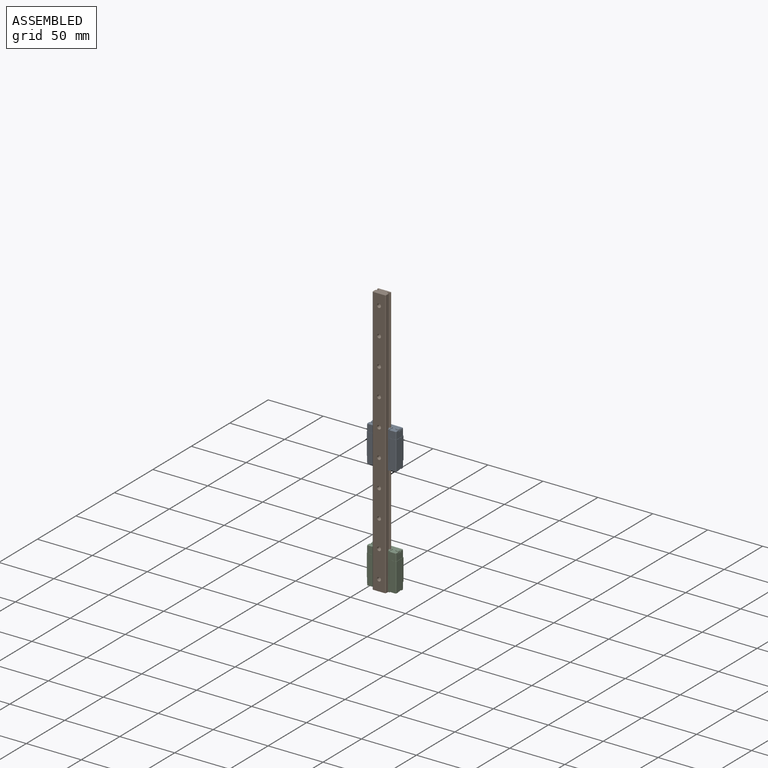
[diagram: assembled view]
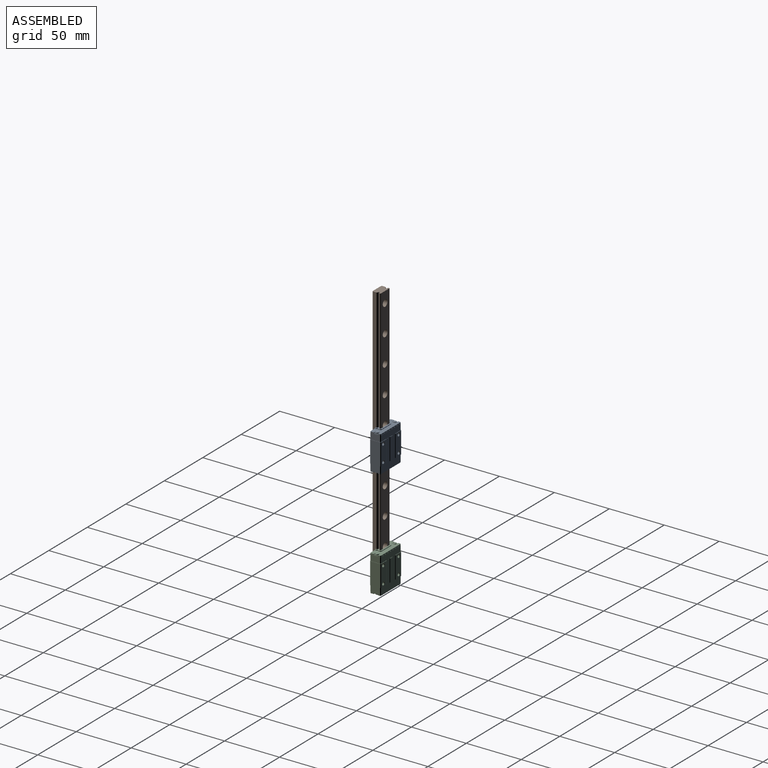
[diagram: assembled view, second angle]
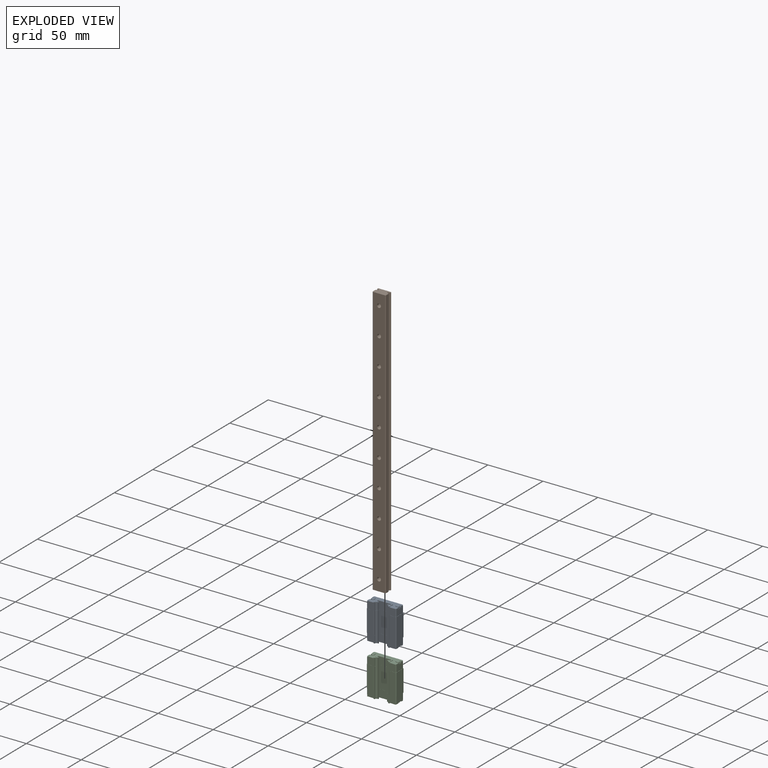
[diagram: exploded view]
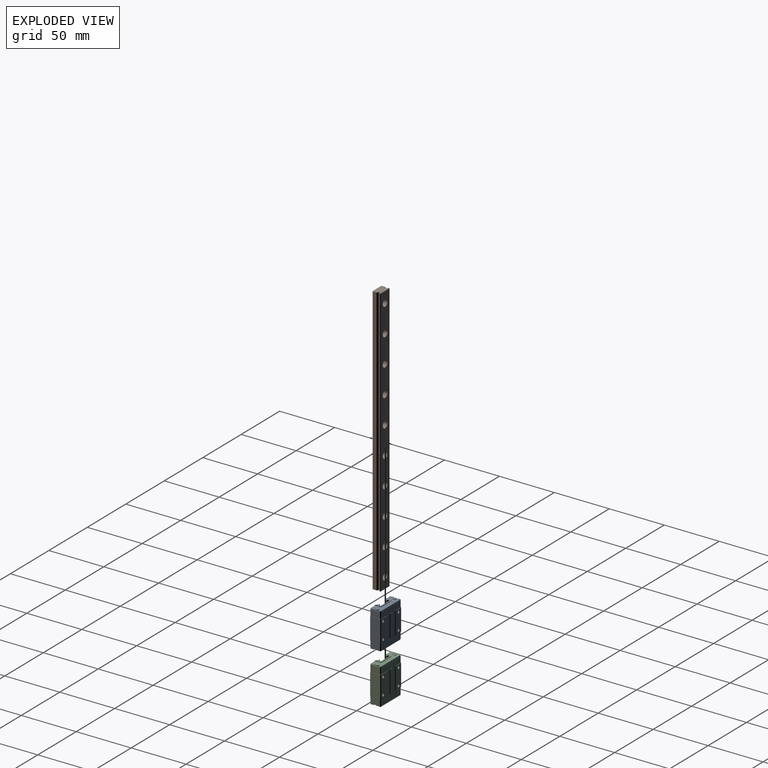
[diagram: exploded view, second angle]
ASSEMBLY  parts=3 mates=2
PART A: 236 faces, bbox 27x10x33.9 mm
  f0: cone r=1.23mm half-angle=60deg, axis (0,1,0), area 5.5mm2, adj f235
  f1: plane 6.95x0.74mm, normal (1,0,0), area 5.1mm2, adj f2,f3,f87,f224
  f2: plane 6.95x0.37mm, normal (0.5,0.87,0), area 3mm2, adj f1,f87,f160,f224
  f3: plane 6.95x0.3mm, normal (0.71,-0.71,0), area 2.9mm2, adj f1,f87,f145,f224
  f4: plane 19.9x0.74mm, normal (1,0,0), area 14.6mm2, adj f141,f142,f200,f223
  f5: plane 6.95x0.74mm, normal (1,0,0), area 5.1mm2, adj f95,f163,f164,f201
  f6: plane 6.95x0.84mm, normal (1,0,0), area 5.8mm2, adj f87,f144,f155,f224
  f7: plane 6.95x0.84mm, normal (-1,0,0), area 5.8mm2, adj f87,f120,f154,f224
  f8: plane 19.9x0.84mm, normal (1,0,0), area 16.6mm2, adj f135,f144,f200,f223
  f9: plane 6.95x0.84mm, normal (1,0,0), area 5.8mm2, adj f95,f144,f168,f201
  f10: plane 6.95x0.84mm, normal (-1,0,0), area 5.8mm2, adj f95,f120,f169,f201
  f11: plane 3x3mm, normal (0,0,-1), area 7.1mm2, adj f12
  f12: cylinder r=1.5mm len=3mm, axis (0,0,1), area 5.7mm2, adj f11,f19
  f13: cylinder r=1.5mm len=3mm, axis (0,0,1), area 5.7mm2, adj f14,f23
  f14: plane 3x3mm, normal (0,0,1), area 7.1mm2, adj f13
  f15: plane 3x3mm, normal (0,0,-1), area 7.1mm2, adj f16
  f16: cylinder r=1.5mm len=3mm, axis (0,0,1), area 5.7mm2, adj f15,f21
  f17: cylinder r=1.5mm len=3mm, axis (0,0,1), area 5.7mm2, adj f18,f25
  f18: plane 3x3mm, normal (0,0,1), area 7.1mm2, adj f17
  f19: plane 3.6x3.55mm, normal (0,0,-1), area 4.3mm2, adj f12,f20,f46,f47,f48
  f20: plane 3.6x0.6mm, normal (1,0,0), area 2.2mm2, adj f19,f41,f46,f48
  f21: plane 3.6x3.55mm, normal (0,0,-1), area 4.3mm2, adj f16,f22,f53,f54,f55
  f22: plane 3.6x0.6mm, normal (-1,0,0), area 2.2mm2, adj f21,f41,f53,f55
  f23: plane 3.6x3.55mm, normal (0,0,1), area 4.3mm2, adj f13,f24,f76,f77,f78
  f24: plane 3.6x0.6mm, normal (1,0,0), area 2.2mm2, adj f23,f71,f76,f78
  f25: plane 3.6x3.55mm, normal (0,0,1), area 4.3mm2, adj f17,f26,f83,f84,f85
  f26: plane 3.6x0.6mm, normal (-1,0,0), area 2.2mm2, adj f25,f71,f83,f85
  f27: plane 26.5x9.5mm, normal (0,0,-1), area 148.2mm2, adj f28,f29,f30,f31,f32,f33,f34,f35
  f28: plane 0.62x0.5mm, normal (-1,0,0), area 0.3mm2, adj f27,f29,f40,f87
  f29: cylinder r=1.6mm len=1.6mm, axis (0,0,1), area 1.3mm2, adj f27,f28,f30,f87
  f30: plane 11.26x0.5mm, normal (0,1,0), area 5.6mm2, adj f27,f29,f31,f87
  f31: cylinder r=1.6mm len=1.6mm, axis (0,0,1), area 1.3mm2, adj f27,f30,f32,f87
  f32: plane 0.62x0.5mm, normal (1,0,0), area 0.3mm2, adj f27,f31,f33,f87
  f33: cylinder r=1.3mm len=1.21mm, axis (0,0,1), area 0.8mm2, adj f27,f32,f34,f87
  f34: cylinder r=0.1mm len=0.5mm, axis (0,0,1), area 0.1mm2, adj f27,f33,f35,f87
  f35: cylinder r=1.3mm len=1.21mm, axis (0,0,1), area 0.8mm2, adj f27,f34,f36,f87
  f36: plane 0.79x0.5mm, normal (1,0,0), area 0.4mm2, adj f27,f35,f87,f120
  f37: plane 0.79x0.5mm, normal (-1,0,0), area 0.4mm2, adj f27,f38,f87,f144
  f38: cylinder r=1.3mm len=1.21mm, axis (0,0,1), area 0.8mm2, adj f27,f37,f39,f87
  f39: cylinder r=0.1mm len=0.5mm, axis (0,0,1), area 0.1mm2, adj f27,f38,f40,f87
  f40: cylinder r=1.3mm len=1.21mm, axis (0,0,1), area 0.8mm2, adj f27,f28,f39,f87
  f41: plane 26.6x9.6mm, normal (0,0,-1), area 5.1mm2, adj f20,f22,f42,f43,f44,f45,f46,f48
  f42: plane 1x0.5mm, normal (-0.71,0.71,0), area 0.7mm2, adj f27,f41,f43,f56
  f43: plane 25.5x1mm, normal (0,1,0), area 25.5mm2, adj f27,f41,f42,f44
  f44: plane 1x0.5mm, normal (0.71,0.71,0), area 0.7mm2, adj f27,f41,f43,f45
  f45: plane 1.9x1mm, normal (1,0,0), area 1.9mm2, adj f27,f41,f44,f46
  f46: plane 1.95x1mm, normal (0,-1,0), area 0.9mm2, adj f19,f20,f27,f41,f45,f47
  f47: cylinder r=1.8mm len=3.6mm, axis (0,0,1), area 2.3mm2, adj f19,f27,f46,f48
  f48: plane 1.95x1mm, normal (0,1,0), area 0.9mm2, adj f19,f20,f27,f41,f47,f49
  f49: plane 3x1mm, normal (1,0,0), area 3mm2, adj f27,f41,f48,f50
  f50: plane 1x0.5mm, normal (0.71,-0.71,0), area 0.7mm2, adj f27,f41,f49,f120
  f51: plane 1x0.5mm, normal (-0.71,-0.71,0), area 0.7mm2, adj f27,f41,f52,f144
  f52: plane 3x1mm, normal (-1,0,0), area 3mm2, adj f27,f41,f51,f53
  f53: plane 1.95x1mm, normal (0,1,0), area 0.9mm2, adj f21,f22,f27,f41,f52,f54
  f54: cylinder r=1.8mm len=3.6mm, axis (0,0,1), area 2.3mm2, adj f21,f27,f53,f55
  f55: plane 1.95x1mm, normal (0,-1,0), area 0.9mm2, adj f21,f22,f27,f41,f54,f56
  f56: plane 1.9x1mm, normal (-1,0,0), area 1.9mm2, adj f27,f41,f42,f55
  f57: plane 26.5x9.5mm, normal (0,0,1), area 148.2mm2, adj f58,f59,f60,f61,f62,f63,f64,f65
  f58: plane 0.62x0.5mm, normal (-1,0,0), area 0.3mm2, adj f57,f59,f70,f95
  f59: cylinder r=1.6mm len=1.6mm, axis (0,0,-1), area 1.3mm2, adj f57,f58,f60,f95
  f60: plane 11.26x0.5mm, normal (0,1,0), area 5.6mm2, adj f57,f59,f61,f95
  f61: cylinder r=1.6mm len=1.6mm, axis (0,0,-1), area 1.3mm2, adj f57,f60,f62,f95
  f62: plane 0.62x0.5mm, normal (1,0,0), area 0.3mm2, adj f57,f61,f63,f95
  f63: cylinder r=1.3mm len=1.21mm, axis (0,0,-1), area 0.8mm2, adj f57,f62,f64,f95
  f64: cylinder r=0.1mm len=0.5mm, axis (0,0,-1), area 0.1mm2, adj f57,f63,f65,f95
  f65: cylinder r=1.3mm len=1.21mm, axis (0,0,-1), area 0.8mm2, adj f57,f64,f66,f95
  f66: plane 0.79x0.5mm, normal (1,0,0), area 0.4mm2, adj f57,f65,f95,f120
  f67: plane 0.79x0.5mm, normal (-1,0,0), area 0.4mm2, adj f57,f68,f95,f144
  f68: cylinder r=1.3mm len=1.21mm, axis (0,0,-1), area 0.8mm2, adj f57,f67,f69,f95
  f69: cylinder r=0.1mm len=0.5mm, axis (0,0,-1), area 0.1mm2, adj f57,f68,f70,f95
  f70: cylinder r=1.3mm len=1.21mm, axis (0,0,-1), area 0.8mm2, adj f57,f58,f69,f95
  f71: plane 26.6x9.6mm, normal (0,0,1), area 5.1mm2, adj f24,f26,f72,f73,f74,f75,f76,f78
  f72: plane 1x0.5mm, normal (-0.71,0.71,0), area 0.7mm2, adj f57,f71,f73,f86
  f73: plane 25.5x1mm, normal (0,1,0), area 25.5mm2, adj f57,f71,f72,f74
  f74: plane 1x0.5mm, normal (0.71,0.71,0), area 0.7mm2, adj f57,f71,f73,f75
  f75: plane 1.9x1mm, normal (1,0,0), area 1.9mm2, adj f57,f71,f74,f76
  f76: plane 1.95x1mm, normal (0,-1,0), area 0.9mm2, adj f23,f24,f57,f71,f75,f77
  f77: cylinder r=1.8mm len=3.6mm, axis (0,0,-1), area 2.3mm2, adj f23,f57,f76,f78
  f78: plane 1.95x1mm, normal (0,1,0), area 0.9mm2, adj f23,f24,f57,f71,f77,f79
  f79: plane 3x1mm, normal (1,0,0), area 3mm2, adj f57,f71,f78,f80
  f80: plane 1x0.5mm, normal (0.71,-0.71,0), area 0.7mm2, adj f57,f71,f79,f120
  f81: plane 1x0.5mm, normal (-0.71,-0.71,0), area 0.7mm2, adj f57,f71,f82,f144
  f82: plane 3x1mm, normal (-1,0,0), area 3mm2, adj f57,f71,f81,f83
  f83: plane 1.95x1mm, normal (0,1,0), area 0.9mm2, adj f25,f26,f57,f71,f82,f84
  f84: cylinder r=1.8mm len=3.6mm, axis (0,0,-1), area 2.3mm2, adj f25,f57,f83,f85
  f85: plane 1.95x1mm, normal (0,-1,0), area 0.9mm2, adj f25,f26,f57,f71,f84,f86
  f86: plane 1.9x1mm, normal (-1,0,0), area 1.9mm2, adj f57,f71,f72,f85
  f87: plane 14.46x5.63mm, normal (0,0,-1), area 31.8mm2, adj f1,f2,f3,f6,f7,f28,f29,f30
  f88: plane 25.6x5.5mm, normal (0,1,0), area 140.8mm2, adj f41,f89,f94,f104
  f89: plane 5.5x0.5mm, normal (0.71,0.71,0), area 3.9mm2, adj f41,f88,f90,f104
  f90: plane 8.6x5.5mm, normal (1,0,0), area 47.3mm2, adj f41,f89,f91,f104
  f91: plane 5.5x0.5mm, normal (0.71,-0.71,0), area 3.9mm2, adj f41,f90,f104,f120
  f92: plane 5.5x0.5mm, normal (-0.71,-0.71,0), area 3.9mm2, adj f41,f93,f104,f144
  f93: plane 8.6x5.5mm, normal (-1,0,0), area 47.3mm2, adj f41,f92,f94,f104
  f94: plane 5.5x0.5mm, normal (-0.71,0.71,0), area 3.9mm2, adj f41,f88,f93,f104
  f95: plane 14.46x5.63mm, normal (0,0,1), area 31.8mm2, adj f5,f9,f10,f58,f59,f60,f61,f62
  f96: plane 25.6x5.5mm, normal (0,1,0), area 140.8mm2, adj f71,f97,f102,f103
  f97: plane 5.5x0.5mm, normal (0.71,0.71,0), area 3.9mm2, adj f71,f96,f98,f103
  f98: plane 8.6x5.5mm, normal (1,0,0), area 47.3mm2, adj f71,f97,f99,f103
  f99: plane 5.5x0.5mm, normal (0.71,-0.71,0), area 3.9mm2, adj f71,f98,f103,f120
  f100: plane 5.5x0.5mm, normal (-0.71,-0.71,0), area 3.9mm2, adj f71,f101,f103,f144
  f101: plane 8.6x5.5mm, normal (-1,0,0), area 47.3mm2, adj f71,f100,f102,f103
  f102: plane 5.5x0.5mm, normal (-0.71,0.71,0), area 3.9mm2, adj f71,f96,f101,f103
  f103: plane 27x10mm, normal (0,0,1), area 11.1mm2, adj f96,f97,f98,f99,f100,f101,f102,f105
  f104: plane 27x10mm, normal (0,0,-1), area 11.1mm2, adj f88,f89,f90,f91,f92,f93,f94,f105
  f105: plane 19.9x0.5mm, normal (-0.71,0.71,0), area 14.1mm2, adj f103,f104,f106,f124
  f106: plane 19.9x7.2mm, normal (0,1,0), area 129.1mm2, adj f103,f104,f105,f107,f225,f231
  f107: plane 19.9x0.4mm, normal (0.53,0.85,0), area 9.4mm2, adj f103,f104,f106,f108
  f108: plane 19.9x3.8mm, normal (0,1,0), area 75.6mm2, adj f103,f104,f107,f109
  f109: plane 19.9x0.4mm, normal (-0.53,0.85,0), area 9.4mm2, adj f103,f104,f108,f110
  f110: plane 19.9x2.4mm, normal (0,1,0), area 47.8mm2, adj f103,f104,f109,f111
  f111: plane 19.9x0.4mm, normal (0.53,0.85,0), area 9.4mm2, adj f103,f104,f110,f112
  f112: plane 19.9x3.8mm, normal (0,1,0), area 75.6mm2, adj f103,f104,f111,f113
  f113: plane 19.9x0.4mm, normal (-0.53,0.85,0), area 9.4mm2, adj f103,f104,f112,f114
  f114: plane 19.9x7.2mm, normal (0,1,0), area 129.1mm2, adj f103,f104,f113,f115,f228,f234
  f115: plane 19.9x0.5mm, normal (0.71,0.71,0), area 14.1mm2, adj f103,f104,f114,f116
  f116: plane 19.9x9mm, normal (1,0,0), area 179.1mm2, adj f103,f104,f115,f117
  f117: plane 19.9x0.5mm, normal (0.71,-0.71,0), area 14.1mm2, adj f103,f104,f116,f118
  f118: plane 19.9x5.5mm, normal (0,-1,0), area 109.5mm2, adj f103,f104,f117,f119
  f119: plane 19.9x0.22mm, normal (-0.41,-0.91,0), area 4.9mm2, adj f103,f104,f118,f120
  f120: plane 33.9x6.8mm, normal (0,-1,0), area 114.9mm2, adj f7,f10,f27,f36,f41,f50,f57,f66
  f121: plane 19.9x0.22mm, normal (0.41,-0.91,0), area 4.9mm2, adj f103,f104,f122,f144
  f122: plane 19.9x5.5mm, normal (0,-1,0), area 109.5mm2, adj f103,f104,f121,f123
  f123: plane 19.9x0.5mm, normal (-0.71,-0.71,0), area 14.1mm2, adj f103,f104,f122,f124
  f124: plane 19.9x9mm, normal (-1,0,0), area 179.1mm2, adj f103,f104,f105,f123
  f125: plane 19.9x11.4mm, normal (0,-1,0), area 226.9mm2, adj f126,f142,f200,f223
  f126: plane 19.9x0.3mm, normal (-0.71,-0.71,0), area 8.4mm2, adj f125,f127,f200,f223
  f127: plane 19.9x0.74mm, normal (-1,0,0), area 14.6mm2, adj f126,f128,f200,f223
  f128: plane 19.9x0.37mm, normal (-0.5,0.87,0), area 8.5mm2, adj f127,f129,f200,f223
  f129: cylinder r=1.32mm len=19.9mm, axis (0,0,1), area 15.3mm2, adj f128,f130,f200,f223
  f130: plane 19.9x1.11mm, normal (0,1,0), area 22.1mm2, adj f129,f131,f200,f223
  f131: plane 19.9x1mm, normal (-1,0,0), area 19.9mm2, adj f130,f132,f200,f223
  f132: plane 19.9x1.11mm, normal (0,-1,0), area 22.1mm2, adj f131,f133,f200,f223
  f133: cylinder r=1.32mm len=19.9mm, axis (0,0,1), area 15.3mm2, adj f132,f134,f200,f223
  f134: plane 19.9x0.37mm, normal (-0.5,-0.87,0), area 8.5mm2, adj f133,f143,f200,f223
  f135: plane 19.9x0.37mm, normal (0.5,-0.87,0), area 8.5mm2, adj f8,f136,f200,f223
  f136: cylinder r=1.32mm len=19.9mm, axis (0,0,1), area 15.3mm2, adj f135,f137,f200,f223
  f137: plane 19.9x1.11mm, normal (0,-1,0), area 22.1mm2, adj f136,f138,f200,f223
  f138: plane 19.9x1mm, normal (1,0,0), area 19.9mm2, adj f137,f139,f200,f223
  f139: plane 19.9x1.11mm, normal (0,1,0), area 22.1mm2, adj f138,f140,f200,f223
  f140: cylinder r=1.32mm len=19.9mm, axis (0,0,1), area 15.3mm2, adj f139,f141,f200,f223
  f141: plane 19.9x0.37mm, normal (0.5,0.87,0), area 8.5mm2, adj f4,f140,f200,f223
  f142: plane 19.9x0.3mm, normal (0.71,-0.71,0), area 8.4mm2, adj f4,f125,f200,f223
  f143: plane 19.9x0.84mm, normal (-1,0,0), area 16.6mm2, adj f120,f134,f200,f223
  f144: plane 33.9x6.8mm, normal (0,-1,0), area 114.9mm2, adj f6,f8,f9,f27,f37,f41,f51,f57
  f145: plane 11.4x6.95mm, normal (0,-1,0), area 79.2mm2, adj f3,f87,f146,f224
  f146: plane 6.95x0.3mm, normal (-0.71,-0.71,0), area 2.9mm2, adj f87,f145,f147,f224
  f147: plane 6.95x0.74mm, normal (-1,0,0), area 5.1mm2, adj f87,f146,f148,f224
  f148: plane 6.95x0.37mm, normal (-0.5,0.87,0), area 3mm2, adj f87,f147,f149,f224
  f149: cylinder r=1.32mm len=6.95mm, axis (0,0,1), area 5.3mm2, adj f87,f148,f150,f224
  f150: plane 6.95x1.11mm, normal (0,1,0), area 7.7mm2, adj f87,f149,f151,f224
  f151: plane 6.95x1mm, normal (-1,0,0), area 6.9mm2, adj f87,f150,f152,f224
  f152: plane 6.95x1.11mm, normal (0,-1,0), area 7.7mm2, adj f87,f151,f153,f224
  f153: cylinder r=1.32mm len=6.95mm, axis (0,0,1), area 5.3mm2, adj f87,f152,f154,f224
  f154: plane 6.95x0.37mm, normal (-0.5,-0.87,0), area 3mm2, adj f7,f87,f153,f224
  f155: plane 6.95x0.37mm, normal (0.5,-0.87,0), area 3mm2, adj f6,f87,f156,f224
  f156: cylinder r=1.32mm len=6.95mm, axis (0,0,1), area 5.3mm2, adj f87,f155,f157,f224
  f157: plane 6.95x1.11mm, normal (0,-1,0), area 7.7mm2, adj f87,f156,f158,f224
  f158: plane 6.95x1mm, normal (1,0,0), area 6.9mm2, adj f87,f157,f159,f224
  f159: plane 6.95x1.11mm, normal (0,1,0), area 7.7mm2, adj f87,f158,f160,f224
  f160: cylinder r=1.32mm len=6.95mm, axis (0,0,1), area 5.3mm2, adj f2,f87,f159,f224
  f161: cylinder r=1.32mm len=6.95mm, axis (0,0,1), area 5.3mm2, adj f95,f162,f163,f201
  f162: plane 6.95x1.11mm, normal (0,1,0), area 7.7mm2, adj f95,f161,f165,f201
  f163: plane 6.95x0.37mm, normal (0.5,0.87,0), area 3mm2, adj f5,f95,f161,f201
  f164: plane 6.95x0.3mm, normal (0.71,-0.71,0), area 2.9mm2, adj f5,f95,f178,f201
  f165: plane 6.95x1mm, normal (1,0,0), area 6.9mm2, adj f95,f162,f166,f201
  f166: plane 6.95x1.11mm, normal (0,-1,0), area 7.7mm2, adj f95,f165,f167,f201
  f167: cylinder r=1.32mm len=6.95mm, axis (0,0,1), area 5.3mm2, adj f95,f166,f168,f201
  f168: plane 6.95x0.37mm, normal (0.5,-0.87,0), area 3mm2, adj f9,f95,f167,f201
  f169: plane 6.95x0.37mm, normal (-0.5,-0.87,0), area 3mm2, adj f10,f95,f170,f201
  f170: cylinder r=1.32mm len=6.95mm, axis (0,0,1), area 5.3mm2, adj f95,f169,f171,f201
  f171: plane 6.95x1.11mm, normal (0,-1,0), area 7.7mm2, adj f95,f170,f172,f201
  f172: plane 6.95x1mm, normal (-1,0,0), area 6.9mm2, adj f95,f171,f173,f201
  f173: plane 6.95x1.11mm, normal (0,1,0), area 7.7mm2, adj f95,f172,f174,f201
  f174: cylinder r=1.32mm len=6.95mm, axis (0,0,1), area 5.3mm2, adj f95,f173,f175,f201
  f175: plane 6.95x0.37mm, normal (-0.5,0.87,0), area 3mm2, adj f95,f174,f176,f201
  f176: plane 6.95x0.74mm, normal (-1,0,0), area 5.1mm2, adj f95,f175,f177,f201
  f177: plane 6.95x0.3mm, normal (-0.71,-0.71,0), area 2.9mm2, adj f95,f176,f178,f201
  f178: plane 11.4x6.95mm, normal (0,-1,0), area 79.2mm2, adj f95,f164,f177,f201
  f179: plane 0.89x0.05mm, normal (1,0,0), area 0mm2, adj f144,f180,f200,f201
  f180: plane 0.34x0.18mm, normal (0.46,-0.89,0), area 0mm2, adj f179,f181,f200,f201
  f181: cylinder r=1.27mm len=0.59mm, axis (0,0,1), area 0mm2, adj f180,f182,f200,f201
  f182: plane 1.09x0.05mm, normal (0,-1,0), area 0.1mm2, adj f181,f183,f200,f201
  f183: plane 0.9x0.05mm, normal (1,0,0), area 0mm2, adj f182,f184,f200,f201
  f184: plane 1.09x0.05mm, normal (0,1,0), area 0.1mm2, adj f183,f185,f200,f201
  f185: cylinder r=1.27mm len=0.59mm, axis (0,0,1), area 0mm2, adj f184,f186,f200,f201
  f186: plane 0.34x0.18mm, normal (0.46,0.89,0), area 0mm2, adj f185,f187,f200,f201
  f187: plane 0.84x0.05mm, normal (1,0,0), area 0mm2, adj f186,f188,f200,f201
  f188: plane 0.3x0.3mm, normal (0.71,-0.71,0), area 0mm2, adj f187,f189,f200,f201
  f189: plane 11.5x0.05mm, normal (0,-1,0), area 0.6mm2, adj f188,f190,f200,f201
  f190: plane 0.3x0.3mm, normal (-0.71,-0.71,0), area 0mm2, adj f189,f191,f200,f201
  f191: plane 0.84x0.05mm, normal (-1,0,0), area 0mm2, adj f190,f192,f200,f201
  f192: plane 0.34x0.18mm, normal (-0.46,0.89,0), area 0mm2, adj f191,f193,f200,f201
  f193: cylinder r=1.27mm len=0.59mm, axis (0,0,1), area 0mm2, adj f192,f194,f200,f201
  f194: plane 1.09x0.05mm, normal (0,1,0), area 0.1mm2, adj f193,f195,f200,f201
  f195: plane 0.9x0.05mm, normal (-1,0,0), area 0mm2, adj f194,f196,f200,f201
  f196: plane 1.09x0.05mm, normal (0,-1,0), area 0.1mm2, adj f195,f197,f200,f201
  f197: cylinder r=1.27mm len=0.59mm, axis (0,0,1), area 0mm2, adj f196,f198,f200,f201
  f198: plane 0.34x0.18mm, normal (-0.46,-0.89,0), area 0mm2, adj f197,f199,f200,f201
  f199: plane 0.89x0.05mm, normal (-1,0,0), area 0mm2, adj f120,f198,f200,f201
  f200: plane 12.1x4.45mm, normal (0,0,1), area 1.4mm2, adj f4,f8,f120,f125,f126,f127,f128,f129
  f201: plane 12.1x4.45mm, normal (0,0,-1), area 1.4mm2, adj f5,f9,f10,f120,f144,f161,f162,f163
  f202: plane 0.89x0.05mm, normal (1,0,0), area 0mm2, adj f144,f203,f223,f224
  f203: plane 0.34x0.18mm, normal (0.46,-0.89,0), area 0mm2, adj f202,f204,f223,f224
  f204: cylinder r=1.27mm len=0.59mm, axis (0,0,-1), area 0mm2, adj f203,f205,f223,f224
  f205: plane 1.09x0.05mm, normal (0,-1,0), area 0.1mm2, adj f204,f206,f223,f224
  f206: plane 0.9x0.05mm, normal (1,0,0), area 0mm2, adj f205,f207,f223,f224
  f207: plane 1.09x0.05mm, normal (0,1,0), area 0.1mm2, adj f206,f208,f223,f224
  f208: cylinder r=1.27mm len=0.59mm, axis (0,0,-1), area 0mm2, adj f207,f209,f223,f224
  f209: plane 0.34x0.18mm, normal (0.46,0.89,0), area 0mm2, adj f208,f210,f223,f224
  f210: plane 0.84x0.05mm, normal (1,0,0), area 0mm2, adj f209,f211,f223,f224
  f211: plane 0.3x0.3mm, normal (0.71,-0.71,0), area 0mm2, adj f210,f212,f223,f224
  f212: plane 11.5x0.05mm, normal (0,-1,0), area 0.6mm2, adj f211,f213,f223,f224
  f213: plane 0.3x0.3mm, normal (-0.71,-0.71,0), area 0mm2, adj f212,f214,f223,f224
  f214: plane 0.84x0.05mm, normal (-1,0,0), area 0mm2, adj f213,f215,f223,f224
  f215: plane 0.34x0.18mm, normal (-0.46,0.89,0), area 0mm2, adj f214,f216,f223,f224
  f216: cylinder r=1.27mm len=0.59mm, axis (0,0,-1), area 0mm2, adj f215,f217,f223,f224
  f217: plane 1.09x0.05mm, normal (0,1,0), area 0.1mm2, adj f216,f218,f223,f224
  f218: plane 0.9x0.05mm, normal (-1,0,0), area 0mm2, adj f217,f219,f223,f224
  f219: plane 1.09x0.05mm, normal (0,-1,0), area 0.1mm2, adj f218,f220,f223,f224
  f220: cylinder r=1.27mm len=0.59mm, axis (0,0,-1), area 0mm2, adj f219,f221,f223,f224
  f221: plane 0.34x0.18mm, normal (-0.46,-0.89,0), area 0mm2, adj f220,f222,f223,f224
  f222: plane 0.89x0.05mm, normal (-1,0,0), area 0mm2, adj f120,f221,f223,f224
  f223: plane 12.1x4.45mm, normal (0,0,-1), area 1.4mm2, adj f4,f8,f120,f125,f126,f127,f128,f129
  f224: plane 12.1x4.45mm, normal (0,0,1), area 1.4mm2, adj f1,f2,f3,f6,f7,f120,f144,f145
  f225: cone r=1.5mm half-angle=45deg, axis (0,1,0), area 3.3mm2, adj f106,f226
  f226: cylinder r=1.23mm len=6.23mm, axis (0,1,0), area 48.1mm2, adj f225,f227
  f227: cone r=1.23mm half-angle=60deg, axis (0,1,0), area 5.5mm2, adj f226
  f228: cone r=1.5mm half-angle=45deg, axis (0,1,0), area 3.3mm2, adj f114,f229
  f229: cylinder r=1.23mm len=6.23mm, axis (0,1,0), area 48.1mm2, adj f228,f230
  f230: cone r=1.23mm half-angle=60deg, axis (0,1,0), area 5.5mm2, adj f229
  f231: cone r=1.5mm half-angle=45deg, axis (0,1,0), area 3.3mm2, adj f106,f232
  f232: cylinder r=1.23mm len=6.23mm, axis (0,1,0), area 48.1mm2, adj f231,f233
  f233: cone r=1.23mm half-angle=60deg, axis (0,1,0), area 5.5mm2, adj f232
  f234: cone r=1.5mm half-angle=45deg, axis (0,1,0), area 3.3mm2, adj f114,f235
  f235: cylinder r=1.23mm len=6.23mm, axis (0,1,0), area 48.1mm2, adj f0,f234
PART B: 56 faces, bbox 12x7.5x245 mm
  f0: plane 245x0.37mm, normal (0.5,-0.87,0), area 104.2mm2, adj f1,f2,f6,f8
  f1: plane 245x0.74mm, normal (1,0,0), area 180.1mm2, adj f0,f6,f7,f8
  f2: cylinder r=1.32mm len=245mm, axis (0,0,1), area 188.5mm2, adj f0,f6,f8,f55
  f3: plane 245x0.3mm, normal (-0.71,0.71,0), area 103.9mm2, adj f4,f5,f6,f8
  f4: plane 245x0.74mm, normal (-1,0,0), area 180.1mm2, adj f3,f6,f8,f43
  f5: plane 245x11.4mm, normal (0,1,0), area 2510.3mm2, adj f3,f6,f7,f8,f9,f12,f15,f18
  f6: plane 12x7.5mm, normal (0,0,1), area 84mm2, adj f0,f1,f2,f3,f4,f5,f7,f39
  f7: plane 245x0.3mm, normal (0.71,0.71,0), area 103.9mm2, adj f1,f5,f6,f8
  f8: plane 12x7.5mm, normal (0,0,-1), area 84mm2, adj f0,f1,f2,f3,f4,f5,f7,f39
  f9: cylinder r=3mm len=6mm, axis (0,1,0), area 84.8mm2, adj f5,f10
  f10: plane 6x6mm, normal (0,1,0), area 18.7mm2, adj f9,f11
  f11: cylinder r=1.75mm len=3.5mm, axis (0,1,0), area 33mm2, adj f10,f39
  f12: cylinder r=3mm len=6mm, axis (0,1,0), area 84.8mm2, adj f5,f13
  f13: plane 6x6mm, normal (0,1,0), area 18.7mm2, adj f12,f14
  f14: cylinder r=1.75mm len=3.5mm, axis (0,1,0), area 33mm2, adj f13,f39
  f15: cylinder r=3mm len=6mm, axis (0,1,0), area 84.8mm2, adj f5,f16
  f16: plane 6x6mm, normal (0,1,0), area 18.7mm2, adj f15,f17
  f17: cylinder r=1.75mm len=3.5mm, axis (0,1,0), area 33mm2, adj f16,f39
  f18: cylinder r=3mm len=6mm, axis (0,1,0), area 84.8mm2, adj f5,f19
  f19: plane 6x6mm, normal (0,1,0), area 18.7mm2, adj f18,f20
  f20: cylinder r=1.75mm len=3.5mm, axis (0,1,0), area 33mm2, adj f19,f39
  f21: cylinder r=3mm len=6mm, axis (0,1,0), area 84.8mm2, adj f5,f22
  f22: plane 6x6mm, normal (0,1,0), area 18.7mm2, adj f21,f23
  f23: cylinder r=1.75mm len=3.5mm, axis (0,1,0), area 33mm2, adj f22,f39
  f24: cylinder r=3mm len=6mm, axis (0,1,0), area 84.8mm2, adj f5,f25
  f25: plane 6x6mm, normal (0,1,0), area 18.7mm2, adj f24,f26
  f26: cylinder r=1.75mm len=3.5mm, axis (0,1,0), area 33mm2, adj f25,f39
  f27: cylinder r=3mm len=6mm, axis (0,1,0), area 84.8mm2, adj f5,f28
  f28: plane 6x6mm, normal (0,1,0), area 18.7mm2, adj f27,f29
  f29: cylinder r=1.75mm len=3.5mm, axis (0,1,0), area 33mm2, adj f28,f39
  f30: cylinder r=3mm len=6mm, axis (0,1,0), area 84.8mm2, adj f5,f31
  f31: plane 6x6mm, normal (0,1,0), area 18.7mm2, adj f30,f32
  f32: cylinder r=1.75mm len=3.5mm, axis (0,1,0), area 33mm2, adj f31,f39
  f33: cylinder r=3mm len=6mm, axis (0,1,0), area 84.8mm2, adj f5,f34
  f34: plane 6x6mm, normal (0,1,0), area 18.7mm2, adj f33,f35
  f35: cylinder r=1.75mm len=3.5mm, axis (0,1,0), area 33mm2, adj f34,f39
  f36: cylinder r=3mm len=6mm, axis (0,1,0), area 84.8mm2, adj f5,f37
  f37: plane 6x6mm, normal (0,1,0), area 18.7mm2, adj f36,f38
  f38: cylinder r=1.75mm len=3.5mm, axis (0,1,0), area 33mm2, adj f37,f39
  f39: plane 245x11mm, normal (0,-1,0), area 2598.8mm2, adj f6,f8,f11,f14,f17,f20,f23,f26
  f40: plane 245x1.11mm, normal (0,-1,0), area 272.2mm2, adj f6,f8,f41,f42
  f41: plane 245x1mm, normal (-1,0,0), area 245mm2, adj f6,f8,f40,f44
  f42: cylinder r=1.32mm len=245mm, axis (0,0,1), area 188.5mm2, adj f6,f8,f40,f43
  f43: plane 245x0.37mm, normal (-0.5,-0.87,0), area 104.2mm2, adj f4,f6,f8,f42
  f44: plane 245x1.11mm, normal (0,1,0), area 272.2mm2, adj f6,f8,f41,f45
  f45: cylinder r=1.32mm len=245mm, axis (0,0,1), area 188.5mm2, adj f6,f8,f44,f46
  f46: plane 245x0.37mm, normal (-0.5,0.87,0), area 104.2mm2, adj f6,f8,f45,f47
  f47: plane 245x3.44mm, normal (-1,0,0), area 841.6mm2, adj f6,f8,f46,f48
  f48: plane 245x0.5mm, normal (-0.71,-0.71,0), area 173.2mm2, adj f6,f8,f39,f47
  f49: plane 245x0.5mm, normal (0.71,-0.71,0), area 173.2mm2, adj f6,f8,f39,f50
  f50: plane 245x3.44mm, normal (1,0,0), area 841.6mm2, adj f6,f8,f49,f51
  f51: plane 245x0.37mm, normal (0.5,0.87,0), area 104.2mm2, adj f6,f8,f50,f52
  f52: cylinder r=1.32mm len=245mm, axis (0,0,1), area 188.5mm2, adj f6,f8,f51,f53
  f53: plane 245x1.11mm, normal (0,1,0), area 272.2mm2, adj f6,f8,f52,f54
  f54: plane 245x1mm, normal (1,0,0), area 245mm2, adj f6,f8,f53,f55
  f55: plane 245x1.11mm, normal (0,-1,0), area 272.2mm2, adj f2,f6,f8,f54
PART C: same geometry as A
PLACE A t=(-21.53,3.54,-68.94)mm
PLACE B rot(axis=(0,0,-1),0deg) t=(-21.53,3.54,-63.39)mm
PLACE C rot(axis=(0,0,-1),0deg) t=(-21.53,3.54,-168.94)mm
MATE slider A.f87 <-> B.f8  axis (0,0,-1) through (-17.53,8.74,-85.89)mm
MATE slider C.f87 <-> B.f8  axis (0,0,-1) through (-17.53,8.74,-185.89)mm
